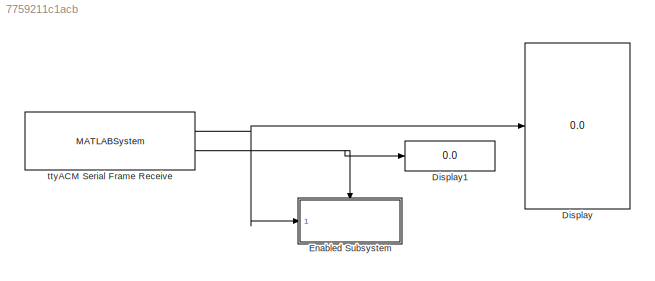
MODEL slx_7759211c1acb
KIND model
CONFIG AbsTol = auto
CONFIG FixedStep = 0.7
CONFIG MaxStep = auto
CONFIG MinStep = auto
CONFIG RelTol = 1e-3
CONFIG SampleTimeConstraint = Unconstrained
CONFIG Solver = FixedStepAuto
CONFIG SolverMode = Auto
CONFIG SolverName = FixedStepAuto
CONFIG StartTime = 0.0
CONFIG StopTime = inf
BLOCK [Display] Display
  Decimation = 1
  Ports = [1]
BLOCK [Display] Display1
  Decimation = 1
  Ports = [1]
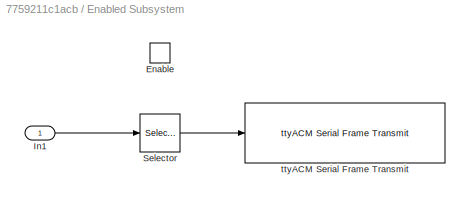
BLOCK [SubSystem] Enabled Subsystem
  Ports = [1, 0, 1]
  RequestExecContextInheritance = off
  TreatAsAtomicUnit = on
  Variant = off
BLOCK [EnablePort] Enabled Subsystem/Enable
  Ports = []
BLOCK [Inport] Enabled Subsystem/In1
  IconDisplay = Port number
BLOCK [Selector] Enabled Subsystem/Selector
  IndexOptions = Index vector (dialog)
  Indices = [1]
  InputPortWidth = 4
  OutputSizes = 1
  Ports = [1, 1]
BLOCK [Reference] Enabled Subsystem/ttyACM Serial Frame Transmit  REF=RPi/ttyACM Serial Frame Transmit
  Ports = [1]
  SourceBlock = RPi/ttyACM Serial Frame Transmit
  SourceType = rpiACMserialFrameTxClass
BLOCK [MATLABSystem] ttyACM Serial Frame Receive
  EOFbyte = 255
  MaskDisplay = disp('rpiACMserialFrameRxClass');\nport_label('output',1,'buffer');\nport_label('output',2,'status');
  MaskType = rpiACMserialFrameRxClass
  Ports = [0, 2]
  SOFbyte = 254
  SimulateUsing = Code generation
  System = rpiACMserialFrameRxClass
  msgLen = 4
  portID = 0
LINE Enabled Subsystem/In1:1 -> Enabled Subsystem/Selector:1
LINE Enabled Subsystem/Selector:1 -> Enabled Subsystem/ttyACM Serial Frame Transmit:1
NET ttyACM Serial Frame Receive:1 -> Display:1, Enabled Subsystem:1
NET ttyACM Serial Frame Receive:2 -> Display1:1, Enabled Subsystem:enable
note: NET lines group one-source signal fan-out (src -> all destinations, sorted); 1:1 wires keep LINE
